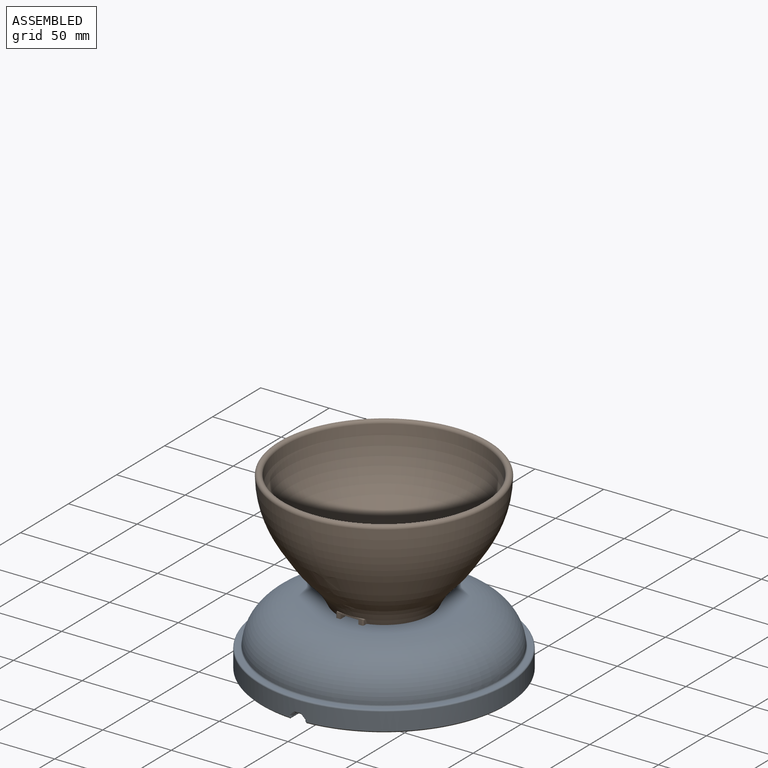
[diagram: assembled view]
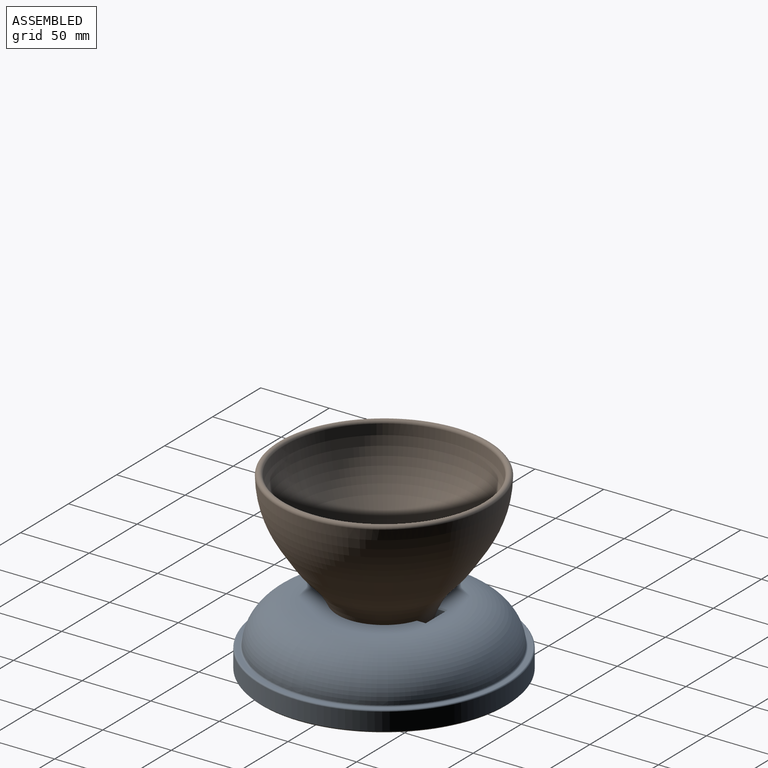
[diagram: assembled view, second angle]
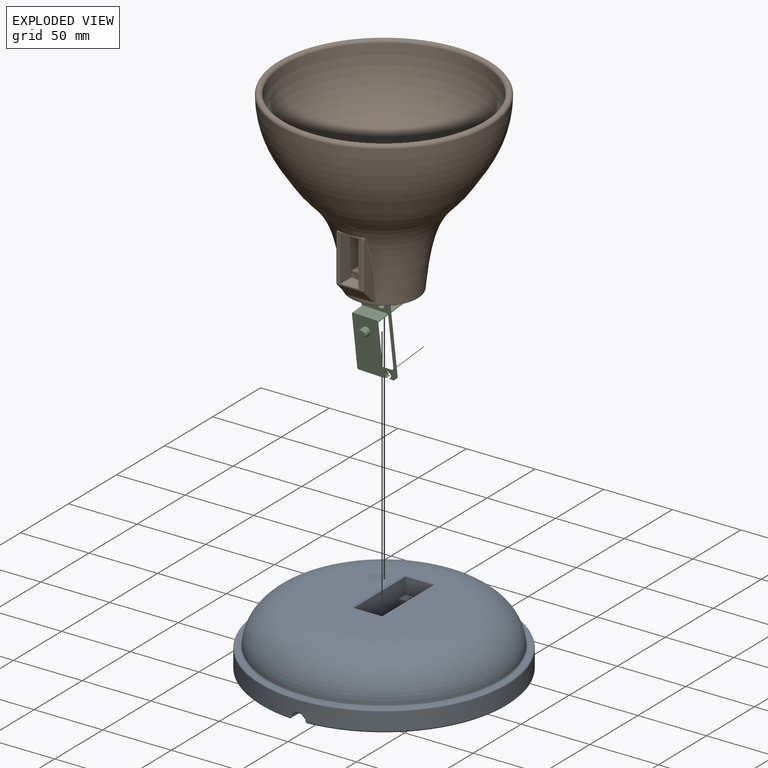
[diagram: exploded view]
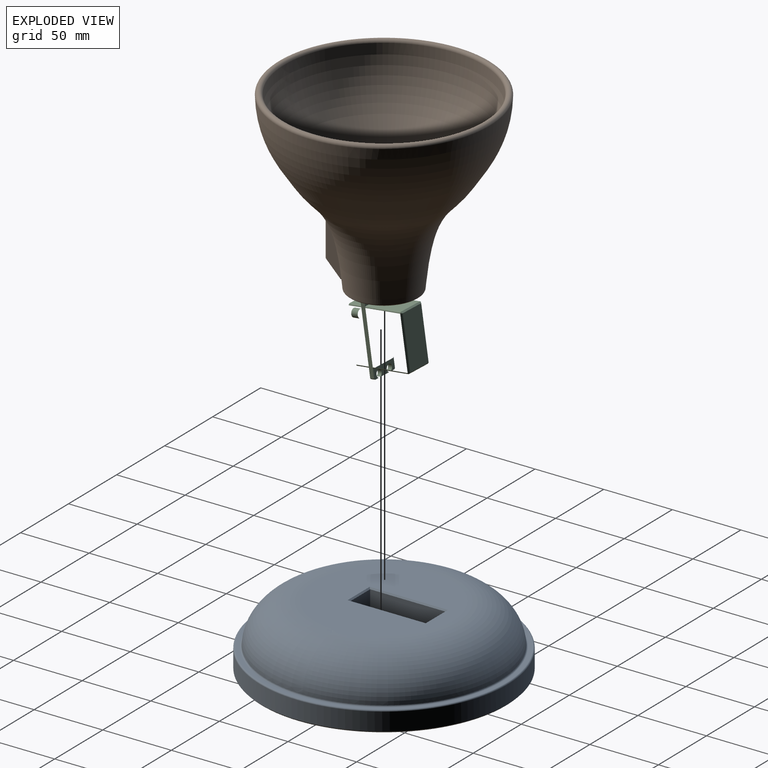
[diagram: exploded view, second angle]
FCSTD DOCUMENT  (FreeCAD 1.0R39109 (Git))
Label: Pixar Lamp Robot
License: All rights reserved
LicenseURL: http://en.wikipedia.org/wiki/All_rights_reserved
objects: Sketcher::SketchObject×21, PartDesign::Pocket×12, PartDesign::Fillet×8, PartDesign::Pad×6, PartDesign::Chamfer×4, PartDesign::Body×4, App::Part×4, PartDesign::Revolution×2, PartDesign::PolarPattern×1, Assembly::JointGroup×1, PartDesign::SubShapeBinder×1, Assembly::AssemblyObject×1
note: 145 computed .brp shape members not serialized (recipe doc carries the construction recipe); baked Part::Feature solids carry a one-line shape summary decoded from their .brp

FEATURE [Sketcher::SketchObject] Sketch010
  ArcFitTolerance = 0
  FullyConstrained = false
  MakeInternals = false
  Placement = pos=(0,0,0) rot=(0,1,0;1.5708rad)
  sketch-geometry (33):
    g0: GeomPoint [constr] X=-127.837 Y=-77.1037 Z=0
    g1: BSplineCurve PolesCount=7 KnotsCount=5 Degree=3 IsPeriodic=0
    g2-g8: Circle [constr] x7 (B-spline internal-alignment scaffolding for g1; pole/knot coordinates omitted)
    g9-g13: GeomPoint [constr] x5 (B-spline internal-alignment scaffolding for g1; pole/knot coordinates omitted)
    g14: LineSegment [constr] StartX=-127.837 StartY=-77.1037 StartZ=0 EndX=-127.837 EndY=-72.4339 EndZ=0
    g15: BSplineCurve PolesCount=6 KnotsCount=4 Degree=3 IsPeriodic=0
    g16: ArcOfCircle CenterX=-127.837 CenterY=-74.7688 CenterZ=0 NormalX=0 NormalY=0 NormalZ=1 AngleXU=0 Radius=2.33488 StartAngle=1.5708 EndAngle=4.71239
    g17: LineSegment StartX=0 StartY=0 StartZ=0 EndX=0 EndY=-24.806 EndZ=0
    g18: LineSegment StartX=0 StartY=0 StartZ=0 EndX=-51.1058 EndY=0 EndZ=0
    g19: LineSegment StartX=-51.1058 StartY=0 StartZ=0 EndX=-51.1058 EndY=-33 EndZ=0
    g20: LineSegment StartX=-51.1058 StartY=-33 StartZ=0 EndX=-68.1058 EndY=-33 EndZ=0
    g21: LineSegment StartX=-68.1058 StartY=-33 StartZ=0 EndX=-68.1058 EndY=-35 EndZ=0
    g22: LineSegment StartX=-68.1058 StartY=-35 StartZ=0 EndX=-54.1739 EndY=-35 EndZ=0
    g23-g28: Circle [constr] x6 (B-spline internal-alignment scaffolding for g15; pole/knot coordinates omitted)
    g29-g32: GeomPoint [constr] x4 (B-spline internal-alignment scaffolding for g15; pole/knot coordinates omitted)
  constraints (53):
    c: Block(g1)
    c: InternalAlignment(g2,g1)
    c: Weight(g2) = 1
    c: InternalAlignment(g3,g1)
    c: Equal(g3,g2)
    c: InternalAlignment(g4,g1)
    c: Equal(g4,g2)
    c: InternalAlignment(g5,g1)
    c: Equal(g5,g2)
    c: InternalAlignment(g6,g1)
    c: Equal(g6,g2)
    c: InternalAlignment(g7,g1)
    c: Equal(g7,g2)
    c: InternalAlignment(g8,g1)
    c: Equal(g8,g2)
    c: InternalAlignment(g9-g13 -> g1) x5
    c: Coincident(g14,g1)
    c: Vertical(g14)
    c: Block(g15)
    c: PointOnObject(g15,g16)
    c: PointOnObject(g16,g14)
    c: Coincident(g16,g14)
    c: Coincident(g16,g1)
    c: Coincident(g17,g-1)
    c: Coincident(g17,g1)
    c: Vertical(g17)
    c: Coincident(g18,g17)
    c: PointOnObject(g18,g-1)
    c: Coincident(g19,g18)
    c: Vertical(g19)
    c: Distance(g19) = 33  'Webcam Carveout Radius'
    c: Coincident(g20,g19)
    c: Horizontal(g20)
    c: Coincident(g21,g20)
    c: Vertical(g21)
    c: Coincident(g22,g21)
    c: Horizontal(g22)
    c: Distance(g21) = 2
    c: Distance(g20,g19) = 17
    c: Coincident(g15,g22)
    c: InternalAlignment(g23,g15)
    c: Weight(g23) = 1
    c: InternalAlignment(g24,g15)
    c: Equal(g24,g23)
    c: InternalAlignment(g25,g15)
    c: Equal(g25,g23)
    c: InternalAlignment(g26,g15)
    c: Equal(g26,g23)
    c: InternalAlignment(g27,g15)
    c: Equal(g27,g23)
    c: InternalAlignment(g28,g15)
    c: Equal(g28,g23)
    c: InternalAlignment(g29-g32 -> g15) x4
FEATURE [PartDesign::Revolution] Revolution001
  Angle = 360
  Angle2 = 60
  Axis = (0,0,-1)
  Base = (0,0,0)
  Placement = pos=(0,0,0) rot=(0,1,0;1.5708rad)
  Profile = -> Sketch010
  ReferenceAxis = -> Sketch010 [H_Axis]
  Reversed = true
  Suppressed = false
  Type = 0
FEATURE [Sketcher::SketchObject] Sketch011  label="Screw Posts"
  ArcFitTolerance = 0
  AttachmentOffset = pos=(0,0,0) rot=(0,0,1;1.5708rad)
  AttachmentSupport = -> [Revolution001]
  FullyConstrained = true
  MakeInternals = false
  MapMode = 5
  Placement = pos=(5.6e-15,0,51.1058) rot=(0,0,1;0rad)
  sketch-geometry (7):
    g0: Circle [constr] CenterX=0 CenterY=0 CenterZ=0 NormalX=0 NormalY=0 NormalZ=1 AngleXU=0 Radius=21
    g1: GeomPoint [constr] X=-21 Y=0 Z=0
    g2: GeomPoint [constr] X=0 Y=21 Z=0
    g3: GeomPoint [constr] X=21 Y=0 Z=0
    g4: Circle CenterX=0 CenterY=21 CenterZ=0 NormalX=0 NormalY=0 NormalZ=1 AngleXU=0 Radius=5
    g5: Circle CenterX=21 CenterY=0 CenterZ=0 NormalX=0 NormalY=0 NormalZ=1 AngleXU=0 Radius=5
    g6: Circle CenterX=-21 CenterY=0 CenterZ=0 NormalX=0 NormalY=0 NormalZ=1 AngleXU=0 Radius=5
  constraints (14):
    c: Coincident(g0,g-1)
    c: Diameter(g0) = 42
    c: PointOnObject(g1,g0)
    c: PointOnObject(g1,g-1)
    c: PointOnObject(g2,g0)
    c: PointOnObject(g2,g-2)
    c: PointOnObject(g3,g0)
    c: PointOnObject(g3,g-1)
    c: Coincident(g4,g2)
    c: Coincident(g5,g3)
    c: Coincident(g6,g1)
    c: Diameter(g6) = 10
    c: Equal(g6,g4)
    c: Equal(g4,g5)
FEATURE [PartDesign::Pad] Pad003  label="PCB Mounting Posts"
  BaseFeature = -> Revolution001
  Direction = (0,0,1)
  Length = 5
  Length2 = 10
  Placement = pos=(0,0,0) rot=(0,1,0;1.5708rad)
  Profile = -> Sketch011
  ReferenceAxis = -> Sketch011 [N_Axis]
  Suppressed = false
  Type = 0
FEATURE [Sketcher::SketchObject] Sketch012  label="Holes for PCB Posts"
  ArcFitTolerance = 0
  AttachmentSupport = -> [Pad003]
  ExternalGeometry = -> [Pad003]
  FullyConstrained = true
  MakeInternals = false
  MapMode = 5
  Placement = pos=(0,0,56.1058) rot=(0,0,-1;1.5708rad)
  sketch-geometry (3):
    g0: Circle CenterX=0 CenterY=-21 CenterZ=0 NormalX=0 NormalY=0 NormalZ=1 AngleXU=0 Radius=0.875
    g1: Circle CenterX=0 CenterY=21 CenterZ=0 NormalX=0 NormalY=0 NormalZ=1 AngleXU=0 Radius=0.875
    g2: Circle CenterX=-21 CenterY=1.78e-14 CenterZ=0 NormalX=0 NormalY=0 NormalZ=1 AngleXU=0 Radius=0.875
  constraints (6):
    c: Coincident(g0,g-3)
    c: Coincident(g1,g-4)
    c: Coincident(g2,g-5)
    c: Equal(g0,g1)
    c: Equal(g1,g2)
    c: Diameter(g2) = 1.75
FEATURE [PartDesign::Pocket] Pocket005
  BaseFeature = -> Pad003
  Direction = (0,0,-1)
  Length = 7
  Length2 = 5
  Placement = pos=(0,0,0) rot=(0,1,0;1.5708rad)
  Profile = -> Sketch012
  ReferenceAxis = -> Sketch012 [N_Axis]
  Suppressed = false
  Type = 0
FEATURE [PartDesign::Chamfer] Chamfer002
  Angle = 45
  Base = -> Pocket005 [Edge10]
  BaseFeature = -> Pocket005
  ChamferType = 0
  FlipDirection = false
  Placement = pos=(0,0,0) rot=(0,1,0;1.5708rad)
  Size = 1
  Size2 = 1
  SupportTransform = false
  Suppressed = false
  UseAllEdges = false
FEATURE [PartDesign::Fillet] Fillet004
  Base = -> Chamfer002 [Edge11,Edge17,Edge12,Edge19,Edge13,Edge21,Edge8]
  BaseFeature = -> Chamfer002
  Placement = pos=(0,0,0) rot=(0,1,0;1.5708rad)
  Radius = 1
  SupportTransform = false
  Suppressed = false
  UseAllEdges = false
FEATURE [PartDesign::Fillet] Fillet005
  Base = -> Fillet004 [Edge18]
  BaseFeature = -> Fillet004
  Placement = pos=(0,0,0) rot=(0,1,0;1.5708rad)
  Radius = 1
  SupportTransform = false
  Suppressed = false
  UseAllEdges = false
FEATURE [Sketcher::SketchObject] Sketch013
  ArcFitTolerance = 0
  AttachmentSupport = -> [YZ_Plane005]
  ExternalGeometry = -> [Sketch010]
  FullyConstrained = true
  MakeInternals = false
  MapMode = 5
  Placement = pos=(0,0,0) rot=(0.57735,0.57735,0.57735;2.0944rad)
  sketch-geometry (5):
    g0: LineSegment StartX=-25.1001 StartY=3.20607 StartZ=0 EndX=-5.99989 EndY=3.20607 EndZ=0
    g1: LineSegment StartX=-5.99989 StartY=3.20607 StartZ=0 EndX=-5.99989 EndY=49.1058 EndZ=0
    g2: LineSegment StartX=-5.99989 StartY=49.1058 StartZ=0 EndX=-35.9999 EndY=49.1058 EndZ=0
    g3: LineSegment StartX=-35.9999 StartY=49.1058 StartZ=0 EndX=-35.9999 EndY=14.1058 EndZ=0
    g4: LineSegment StartX=-35.9999 StartY=14.1058 StartZ=0 EndX=-25.1001 EndY=3.20607 EndZ=0
  constraints (16):
    c: Coincident(g0,g1)
    c: Coincident(g1,g2)
    c: Coincident(g2,g3)
    c: Horizontal(g0)
    c: Horizontal(g2)
    c: Vertical(g1)
    c: Vertical(g3)
    c: Angle(g0,g4) = 2.35619
    c: Coincident(g3,g4)
    c: Coincident(g0,g4)
    c: Distance(g2) = 30
    c: Distance(g3) = 35
    c: PointOnObject(g2,g-3)
    c: PointOnObject(g0,g-3)
    c: DistanceY(g1,g-5) = 2
    c: DistanceX(g0,g-1) = 5.99989
FEATURE [PartDesign::Pad] Pad004  label="Servo mounting point"
  BaseFeature = -> Fillet005
  Direction = (1,0,0)
  Length = 20
  Length2 = 10
  Midplane = true
  Placement = pos=(0,0,0) rot=(0,1,0;1.5708rad)
  Profile = -> Sketch013
  ReferenceAxis = -> Sketch013 [N_Axis]
  Suppressed = false
  Type = 0
FEATURE [Sketcher::SketchObject] Sketch014  label="Servo mounting carveout"
  ArcFitTolerance = 0
  AttachmentSupport = -> [Pad004]
  ExternalGeometry = -> [Pad004]
  FullyConstrained = true
  MakeInternals = false
  MapMode = 5
  Placement = pos=(0,-35.9999,0) rot=(0.57735,0.57735,-0.57735;2.0944rad)
  sketch-geometry (8):
    g0: LineSegment [constr] StartX=-49.1058 StartY=-10 StartZ=0 EndX=-14.1058 EndY=10 EndZ=0
    g1: LineSegment [constr] StartX=-14.1058 StartY=-10 StartZ=0 EndX=-49.1058 EndY=10 EndZ=0
    g2: GeomPoint [constr] X=-31.6058 Y=-6.2e-15 Z=0
    g3: LineSegment StartX=-15.1058 StartY=-6.5 StartZ=0 EndX=-15.1058 EndY=6.5 EndZ=0
    g4: LineSegment StartX=-15.1058 StartY=6.5 StartZ=0 EndX=-48.1058 EndY=6.5 EndZ=0
    g5: LineSegment StartX=-48.1058 StartY=6.5 StartZ=0 EndX=-48.1058 EndY=-6.5 EndZ=0
    g6: LineSegment StartX=-48.1058 StartY=-6.5 StartZ=0 EndX=-15.1058 EndY=-6.5 EndZ=0
    g7: GeomPoint [constr] X=-31.6058 Y=-6.2e-15 Z=0
  constraints (18):
    c: Coincident(g0,g-4)
    c: Coincident(g0,g-7)
    c: Coincident(g1,g-7)
    c: Coincident(g1,g-6)
    c: PointOnObject(g2,g0)
    c: PointOnObject(g2,g1)
    c: Coincident(g3,g4)
    c: Coincident(g4,g5)
    c: Coincident(g5,g6)
    c: Coincident(g6,g3)
    c: Horizontal(g4)
    c: Horizontal(g6)
    c: Vertical(g3)
    c: Vertical(g5)
    c: Symmetric(g4,g3,g7)
    c: Coincident(g7,g2)
    c: Distance(g4) = 33
    c: Distance(g5) = 13
FEATURE [PartDesign::Pocket] Pocket006
  BaseFeature = -> Pad004
  Direction = (0,1,0)
  Length = 11
  Length2 = 5
  Placement = pos=(0,0,0) rot=(0,1,0;1.5708rad)
  Profile = -> Sketch014
  ReferenceAxis = -> Sketch014 [N_Axis]
  Suppressed = false
  Type = 0
FEATURE [Sketcher::SketchObject] Sketch015  label="Servo main body and cord allowment"
  ArcFitTolerance = 0
  AttachmentSupport = -> [Pocket006]
  ExternalGeometry = -> [Pocket006]
  FullyConstrained = true
  MakeInternals = false
  MapMode = 5
  Placement = pos=(0,-24.9999,0) rot=(0.57735,0.57735,-0.57735;2.0944rad)
  sketch-geometry (8):
    g0: LineSegment [constr] StartX=-48.1058 StartY=-6.5 StartZ=0 EndX=-15.1058 EndY=6.5 EndZ=0
    g1: LineSegment [constr] StartX=-15.1058 StartY=-6.5 StartZ=0 EndX=-48.1058 EndY=6.5 EndZ=0
    g2: GeomPoint [constr] X=-31.6058 Y=1e-15 Z=0
    g3: LineSegment StartX=-19.6058 StartY=-6.5 StartZ=0 EndX=-19.6058 EndY=6.5 EndZ=0
    g4: LineSegment StartX=-19.6058 StartY=6.5 StartZ=0 EndX=-43.6058 EndY=6.5 EndZ=0
    g5: LineSegment StartX=-43.6058 StartY=6.5 StartZ=0 EndX=-43.6058 EndY=-6.5 EndZ=0
    g6: LineSegment StartX=-43.6058 StartY=-6.5 StartZ=0 EndX=-19.6058 EndY=-6.5 EndZ=0
    g7: GeomPoint [constr] X=-31.6058 Y=1e-15 Z=0
  constraints (18):
    c: Coincident(g0,g-4)
    c: Coincident(g0,g-6)
    c: Coincident(g1,g-6)
    c: Coincident(g1,g-5)
    c: PointOnObject(g2,g0)
    c: PointOnObject(g2,g1)
    c: Coincident(g3,g4)
    c: Coincident(g4,g5)
    c: Coincident(g5,g6)
    c: Coincident(g6,g3)
    c: Horizontal(g4)
    c: Horizontal(g6)
    c: Vertical(g3)
    c: Vertical(g5)
    c: Symmetric(g4,g3,g7)
    c: Coincident(g7,g2)
    c: PointOnObject(g5,g-3)
    c: Distance(g4) = 24
FEATURE [PartDesign::Pocket] Pocket007
  BaseFeature = -> Pocket006
  Direction = (0,1,0)
  Length = 16.5
  Length2 = 5
  Placement = pos=(0,0,0) rot=(0,1,0;1.5708rad)
  Profile = -> Sketch015
  ReferenceAxis = -> Sketch015 [N_Axis]
  Suppressed = false
  Type = 0
FEATURE [Sketcher::SketchObject] Sketch016
  ArcFitTolerance = 0
  AttachmentSupport = -> [Pocket007]
  FullyConstrained = true
  MakeInternals = false
  MapMode = 5
  Placement = pos=(5.6e-15,0,51.1058) rot=(0,0,-1;1.5708rad)
  sketch-geometry (1):
    g0: Circle CenterX=0 CenterY=0 CenterZ=0 NormalX=0 NormalY=0 NormalZ=1 AngleXU=0 Radius=8
  constraints (2):
    c: Coincident(g0,g-1)
    c: Radius(g0) = 8
FEATURE [PartDesign::Pocket] Pocket008
  BaseFeature = -> Pocket007
  Direction = (-2e-15,0,-1)
  Length = 0
  Length2 = 5
  Placement = pos=(0,0,0) rot=(0,1,0;1.5708rad)
  Profile = -> Sketch016
  ReferenceAxis = -> Sketch016 [N_Axis]
  Suppressed = false
  Type = 3
  UpToFace = -> Pocket007 [Face13]
FEATURE [PartDesign::Fillet] Fillet006
  Base = -> Pocket008 [Face13]
  BaseFeature = -> Pocket008
  Placement = pos=(0,0,0) rot=(0,1,0;1.5708rad)
  Radius = 1
  SupportTransform = false
  Suppressed = false
  UseAllEdges = false
FEATURE [PartDesign::Fillet] Fillet007
  Base = -> Fillet006 [Face4]
  BaseFeature = -> Fillet006
  Placement = pos=(0,0,0) rot=(0,1,0;1.5708rad)
  Radius = 1
  SupportTransform = false
  Suppressed = false
  UseAllEdges = false
FEATURE [PartDesign::Fillet] Fillet008
  Base = -> Fillet007 [Face9]
  BaseFeature = -> Fillet007
  Placement = pos=(0,0,0) rot=(0,1,0;1.5708rad)
  Radius = 1
  SupportTransform = false
  Suppressed = false
  UseAllEdges = false
FEATURE [PartDesign::Fillet] Fillet009
  Base = -> Fillet008 [Edge43]
  BaseFeature = -> Fillet008
  Placement = pos=(0,0,0) rot=(0,1,0;1.5708rad)
  Radius = 1
  SupportTransform = false
  Suppressed = false
  UseAllEdges = false
FEATURE [Sketcher::SketchObject] Sketch017  label="Servo cord feed through"
  ArcFitTolerance = 0
  AttachmentSupport = -> [Fillet009]
  ExternalGeometry = -> [Fillet009]
  FullyConstrained = true
  MakeInternals = false
  MapMode = 5
  Placement = pos=(4.8e-15,0,43.6058) rot=(0.707107,0.707107,0;3.14159rad)
  sketch-geometry (5):
    g0: LineSegment StartX=-20.4999 StartY=-6.5 StartZ=0 EndX=-20.4999 EndY=6.5 EndZ=0
    g1: LineSegment StartX=-20.4999 StartY=6.5 StartZ=0 EndX=-8.49989 EndY=6.5 EndZ=0
    g2: LineSegment StartX=-8.49989 StartY=6.5 StartZ=0 EndX=-8.49989 EndY=-6.5 EndZ=0
    g3: LineSegment StartX=-8.49989 StartY=-6.5 StartZ=0 EndX=-20.4999 EndY=-6.5 EndZ=0
    g4: GeomPoint [constr] X=-14.4999 Y=0 Z=0
  constraints (13):
    c: Coincident(g0,g1)
    c: Coincident(g1,g2)
    c: Coincident(g2,g3)
    c: Coincident(g3,g0)
    c: Horizontal(g1)
    c: Horizontal(g3)
    c: Vertical(g0)
    c: Vertical(g2)
    c: Symmetric(g1,g0,g4)
    c: PointOnObject(g4,g-1)
    c: PointOnObject(g1,g-4)
    c: PointOnObject(g0,g-6)
    c: Distance(g1) = 12
FEATURE [PartDesign::Pocket] Pocket009
  BaseFeature = -> Fillet009
  Direction = (0,0,1)
  Length = 0
  Length2 = 5
  Placement = pos=(0,0,0) rot=(0,1,0;1.5708rad)
  Profile = -> Sketch017
  ReferenceAxis = -> Sketch017 [N_Axis]
  Suppressed = false
  Type = 3
  UpToFace = -> Fillet009 [Face46]
FEATURE [Sketcher::SketchObject] Sketch018  label="Servo screw mounting holes"
  ArcFitTolerance = 0
  AttachmentSupport = -> [Pocket009]
  ExternalGeometry = -> [Pocket009]
  FullyConstrained = true
  MakeInternals = false
  MapMode = 5
  Placement = pos=(0,-24.9999,0) rot=(0.57735,0.57735,-0.57735;2.0944rad)
  sketch-geometry (11):
    g0: ArcOfCircle CenterX=-45.6058 CenterY=0 CenterZ=0 NormalX=0 NormalY=0 NormalZ=1 AngleXU=0 Radius=0.875 StartAngle=3.92699 EndAngle=8.63938
    g1: ArcOfCircle CenterX=-17.6058 CenterY=0 CenterZ=0 NormalX=0 NormalY=0 NormalZ=1 AngleXU=0 Radius=0.875 StartAngle=3.92699 EndAngle=8.63938
    g2: LineSegment [constr] StartX=-48.1058 StartY=6.5 StartZ=0 EndX=-15.1058 EndY=-6.5 EndZ=0
    g3: LineSegment [constr] StartX=-48.1058 StartY=-6.5 StartZ=0 EndX=-15.1058 EndY=6.5 EndZ=0
    g4: GeomPoint [constr] X=-31.6058 Y=-7.2e-15 Z=0
    g5: LineSegment [constr] StartX=-45.6058 StartY=0 StartZ=0 EndX=-31.6058 EndY=-7.2e-15 EndZ=0
    g6: LineSegment [constr] StartX=-31.6058 StartY=-7.2e-15 StartZ=0 EndX=-17.6058 EndY=0 EndZ=0
    g7: LineSegment StartX=-46.2245 StartY=-0.618718 StartZ=0 EndX=-46.8433 EndY=0 EndZ=0
    g8: LineSegment StartX=-46.2245 StartY=0.618718 StartZ=0 EndX=-46.8433 EndY=0 EndZ=0
    g9: LineSegment StartX=-18.2245 StartY=-0.618718 StartZ=0 EndX=-18.8433 EndY=-7e-16 EndZ=0
    g10: LineSegment StartX=-18.8433 StartY=-7e-16 StartZ=0 EndX=-18.2245 EndY=0.618718 EndZ=0
  constraints (26):
    c: PointOnObject(g0,g-1)
    c: PointOnObject(g1,g-1)
    c: Distance(g0,g1) = 28
    c: Coincident(g2,g-4)
    c: Coincident(g2,g-6)
    c: Coincident(g3,g-5)
    c: Coincident(g3,g-6)
    c: PointOnObject(g4,g3)
    c: PointOnObject(g4,g2)
    c: Coincident(g5,g0)
    c: Coincident(g6,g4)
    c: Equal(g5,g6)
    c: Coincident(g5,g4)
    c: Coincident(g6,g1)
    c: Equal(g0,g1)
    c: Diameter(g0) = 1.75
    c: PointOnObject(g7,g-1)
    c: Coincident(g8,g7)
    c: Perpendicular(g8,g7)
    c: Tangent(g0,g8) = -1.5708
    c: Tangent(g0,g7) = 1.5708
    c: PointOnObject(g9,g6)
    c: Coincident(g10,g9)
    c: Perpendicular(g10,g9)
    c: Tangent(g1,g9) = 1.5708
    c: Tangent(g1,g10) = 1.5708
FEATURE [PartDesign::Pocket] Pocket010
  BaseFeature = -> Pocket009
  Direction = (0,1,0)
  Length = 10
  Length2 = 5
  Placement = pos=(0,0,0) rot=(0,1,0;1.5708rad)
  Profile = -> Sketch018
  ReferenceAxis = -> Sketch018 [N_Axis]
  Suppressed = false
  Type = 0
FEATURE [Sketcher::SketchObject] Sketch019
  ArcFitTolerance = 0
  AttachmentOffset = pos=(0,0,-30) rot=(0,0,1;0rad)
  AttachmentSupport = -> [YZ_Plane005]
  ExternalGeometry = -> [Pocket010]
  FullyConstrained = true
  MakeInternals = false
  MapMode = 5
  Placement = pos=(-30,0,0) rot=(0.57735,0.57735,0.57735;2.0944rad)
  sketch-geometry (1):
    g0: Circle CenterX=0 CenterY=68.1058 CenterZ=0 NormalX=0 NormalY=0 NormalZ=1 AngleXU=0 Radius=10
  constraints (3):
    c: Diameter(g0) = 20
    c: PointOnObject(g0,g-2)
    c: PointOnObject(g0,g-3)
FEATURE [PartDesign::Pocket] Pocket011
  BaseFeature = -> Pocket010
  Direction = (-1,0,0)
  Length = 5
  Length2 = 5
  Placement = pos=(0,0,0) rot=(0,1,0;1.5708rad)
  Profile = -> Sketch019
  ReferenceAxis = -> Sketch019 [N_Axis]
  Suppressed = false
  Type = 0
FEATURE [PartDesign::PolarPattern] PolarPattern001
  Angle = 360
  Axis = -> Z_Axis005
  BaseFeature = -> Pocket011
  Mode = 0
  Occurrences = 2
  Offset = 120
  Originals = -> [Pocket011]
  Placement = pos=(0,0,0) rot=(0,1,0;1.5708rad)
  Suppressed = false
  TransformMode = 0
FEATURE [PartDesign::Body] Body003
  AllowCompound = false
  Group = -> [Sketch010,Revolution001,Sketch011,Pad003,Sketch012,Pocket005,Chamfer002,Fillet004,Fillet005,Sketch013,Pad004,Sketch014,Pocket006,Sketch015,Pocket007,Sketch016,Pocket008,Fillet006,Fillet007,Fillet008,Fillet009,Sketch017,Pocket009,Sketch018,Pocket010,Sketch019,Pocket011,PolarPattern001]
  Origin = -> Origin005
  Tip = -> PolarPattern001
FEATURE [App::Part] Part001  label="Lampshade001"
  Group = -> [Body003]
  Origin = -> Origin004
FEATURE [Assembly::JointGroup] Joints
FEATURE [Sketcher::SketchObject] Sketch
  ArcFitTolerance = 1e-06
  AttachmentSupport = -> [XZ_Plane007]
  FullyConstrained = true
  MakeInternals = false
  MapMode = 5
  Placement = pos=(0,0,0) rot=(1,0,0;1.5708rad)
  sketch-geometry (10):
    g0: LineSegment StartX=0 StartY=0 StartZ=0 EndX=0 EndY=45 EndZ=0
    g1: LineSegment StartX=0 StartY=0 StartZ=0 EndX=90 EndY=0 EndZ=0
    g2: LineSegment StartX=90 StartY=0 StartZ=0 EndX=90 EndY=15 EndZ=0
    g3: ArcOfEllipse CenterX=50 CenterY=15 CenterZ=0 NormalX=0 NormalY=0 NormalZ=1 MajorRadius=35 MinorRadius=30 AngleXU=0 StartAngle=0 EndAngle=1.5708
    g4: LineSegment [constr] StartX=85 StartY=15 StartZ=0 EndX=15 EndY=15 EndZ=0
    g5: LineSegment [constr] StartX=50 StartY=45 StartZ=0 EndX=50 EndY=-15 EndZ=0
    g6: GeomPoint [constr] X=68.0278 Y=15 Z=0
    g7: GeomPoint [constr] X=31.9722 Y=15 Z=0
    g8: LineSegment StartX=90 StartY=15 StartZ=0 EndX=85 EndY=15 EndZ=0
    g9: LineSegment StartX=0 StartY=45 StartZ=0 EndX=50 EndY=45 EndZ=0
  constraints (21):
    c: Coincident(g0,g-1)
    c: PointOnObject(g0,g-2)
    c: Coincident(g1,g0)
    c: PointOnObject(g1,g-1)
    c: Coincident(g2,g1)
    c: Vertical(g2)
    c: InternalAlignment(g4-g7 -> g3) x4
    c: Coincident(g8,g2)
    c: Horizontal(g8)
    c: Coincident(g3,g8)
    c: Horizontal(g4)
    c: Coincident(g9,g0)
    c: Horizontal(g9)
    c: Coincident(g3,g9)
    c: Coincident(g5,g3)
    c: Distance(g1,g1) = 90
    c: DistanceY(g0,g0) = 45
    c: DistanceX(g9,g9) = 50
    c: Coincident(g3,g4)
    c: Distance(g8,g8) = 5
    c: Distance(g2,g2) = 15
FEATURE [PartDesign::Revolution] Revolution
  Angle = 360
  Angle2 = 60
  Axis = (0,2e-16,1)
  Base = (0,0,0)
  Placement = pos=(0,0,0) rot=(1,0,0;1.5708rad)
  Profile = -> Sketch
  ReferenceAxis = -> Sketch [V_Axis]
  Reversed = true
  Suppressed = false
  Type = 0
FEATURE [PartDesign::Fillet] Fillet
  Base = -> Revolution [Face1]
  BaseFeature = -> Revolution
  Placement = pos=(0,0,0) rot=(1,0,0;1.5708rad)
  Radius = 1
  SupportTransform = false
  Suppressed = false
  UseAllEdges = false
FEATURE [Sketcher::SketchObject] Sketch020  label="base servo body cutout"
  ArcFitTolerance = 1e-06
  FullyConstrained = false
  MakeInternals = false
  MapMode = 5
  Placement = pos=(0,1e-14,45) rot=(0,0,1;3.14159rad)
  sketch-geometry (9):
    g0: LineSegment StartX=-10.5 StartY=-37.5 StartZ=0 EndX=10.5 EndY=-37.5 EndZ=0
    g1: LineSegment StartX=10.5 StartY=-37.5 StartZ=0 EndX=10.5 EndY=17.5 EndZ=0
    g2: LineSegment StartX=-10.5 StartY=17.5 StartZ=0 EndX=-10.5 EndY=-37.5 EndZ=0
    g3: LineSegment StartX=10.5 StartY=17.5 StartZ=0 EndX=0 EndY=17.5 EndZ=0
    g4: LineSegment StartX=0 StartY=17.5 StartZ=0 EndX=-10.5 EndY=17.5 EndZ=0
    g5: LineSegment [constr] StartX=-10.5 StartY=10 StartZ=0 EndX=10.5 EndY=10 EndZ=0
    g6: LineSegment [constr] StartX=-10.5 StartY=-30 StartZ=0 EndX=10.5 EndY=-30 EndZ=0
    g7: LineSegment [constr] StartX=-5.40577 StartY=-30 StartZ=0 EndX=-5.40577 EndY=-37.5 EndZ=0
    g8: LineSegment [constr] StartX=-2.00214 StartY=10 StartZ=0 EndX=-2.00214 EndY=17.5 EndZ=0
  constraints (29):
    c: Coincident(g0,g1)
    c: Coincident(g1,g3)
    c: Coincident(g4,g2)
    c: Coincident(g2,g0)
    c: Horizontal(g0)
    c: Vertical(g1)
    c: Vertical(g2)
    c: DistanceY(g1,g1) = 55
    c: Distance(g3,g4) = 21
    c: Coincident(g3,g4)
    c: Horizontal(g3)
    c: Horizontal(g4)
    c: Equal(g4,g3)
    c: PointOnObject(g3,g-2)
    c: PointOnObject(g5,g2)
    c: PointOnObject(g5,g1)
    c: Horizontal(g5)
    c: PointOnObject(g6,g2)
    c: PointOnObject(g6,g1)
    c: Horizontal(g6)
    c: PointOnObject(g7,g6)
    c: PointOnObject(g7,g0)
    c: PointOnObject(g8,g5)
    c: PointOnObject(g8,g3)
    c: Vertical(g8)
    c: Equal(g8,g7)
    c: Perpendicular(g0,g7)
    c: Distance(g-1,g5) = 10
    c: DistanceY(g6,g5) = 40
FEATURE [Sketcher::SketchObject] Sketch021
  ArcFitTolerance = 1e-06
  AttachmentSupport = -> [XY_Plane009]
  FullyConstrained = true
  MakeInternals = false
  MapMode = 5
  sketch-geometry (6):
    g0: Circle CenterX=0 CenterY=0 CenterZ=0 NormalX=0 NormalY=0 NormalZ=1 AngleXU=0 Radius=3
    g1: LineSegment StartX=-10 StartY=-30 StartZ=0 EndX=10 EndY=-30 EndZ=0
    g2: LineSegment StartX=10 StartY=-30 StartZ=0 EndX=10 EndY=10 EndZ=0
    g3: LineSegment StartX=-10 StartY=10 StartZ=0 EndX=-10 EndY=-30 EndZ=0
    g4: LineSegment StartX=10 StartY=10 StartZ=0 EndX=0 EndY=10 EndZ=0
    g5: LineSegment StartX=0 StartY=10 StartZ=0 EndX=-10 EndY=10 EndZ=0
  constraints (17):
    c: Coincident(g0,g-1)
    c: Coincident(g1,g2)
    c: Coincident(g2,g4)
    c: Coincident(g5,g3)
    c: Coincident(g3,g1)
    c: Horizontal(g1)
    c: Vertical(g2)
    c: Vertical(g3)
    c: Coincident(g4,g5)
    c: Horizontal(g4)
    c: Horizontal(g5)
    c: Equal(g5,g4)
    c: PointOnObject(g4,g-2)
    c: DistanceY(g0,g4) = 10
    c: DistanceY(g2,g2) = 40
    c: Distance(g1,g1) = 20
    c: Diameter(g0) = 6
FEATURE [PartDesign::Pad] Pad
  Direction = (0,0,1)
  Length = 27.8
  Length2 = 10
  Profile = -> Sketch021 [Edge6,Edge2,Edge3,Edge4,Edge5]
  ReferenceAxis = -> Sketch021 [N_Axis]
  Reversed = true
  Suppressed = false
  Type = 0
FEATURE [Sketcher::SketchObject] Sketch022
  ArcFitTolerance = 1e-06
  AttachmentSupport = -> [XY_Plane009]
  ExternalGeometry = -> [Pad]
  FullyConstrained = false
  MakeInternals = false
  MapMode = 5
  sketch-geometry (41):
    g0: LineSegment StartX=-10 StartY=-37.25 StartZ=0 EndX=-6.12702 EndY=-37.25 EndZ=0
    g1: LineSegment StartX=10 StartY=17.25 StartZ=0 EndX=6.12702 EndY=17.25 EndZ=0
    g2: LineSegment StartX=-10 StartY=17.25 StartZ=0 EndX=-10 EndY=10 EndZ=0
    g3: LineSegment StartX=-10 StartY=10 StartZ=0 EndX=-10 EndY=-30 EndZ=0
    g4: LineSegment StartX=-10 StartY=-30 StartZ=0 EndX=-10 EndY=-37.25 EndZ=0
    g5: ArcOfCircle CenterX=-5 CenterY=14.75 CenterZ=0 NormalX=0 NormalY=0 NormalZ=1 AngleXU=0 Radius=2.5 StartAngle=2.01419 EndAngle=7.41059
    g6: ArcOfCircle CenterX=5 CenterY=14.75 CenterZ=0 NormalX=0 NormalY=0 NormalZ=1 AngleXU=0 Radius=2.5 StartAngle=2.01419 EndAngle=7.41059
    g7: LineSegment [constr] StartX=-5 StartY=14.75 StartZ=0 EndX=-2.49e-14 EndY=14.75 EndZ=0
    g8: LineSegment [constr] StartX=-2.49e-14 StartY=14.75 StartZ=0 EndX=5 EndY=14.75 EndZ=0
    g9: LineSegment [constr] StartX=-5 StartY=-34.75 StartZ=0 EndX=0 EndY=-34.75 EndZ=0
    g10: LineSegment [constr] StartX=0 StartY=-34.75 StartZ=0 EndX=5 EndY=-34.75 EndZ=0
    g11: ArcOfCircle CenterX=-6.12702 CenterY=17.123 CenterZ=0 NormalX=0 NormalY=0 NormalZ=1 AngleXU=0 Radius=0.127017 StartAngle=5.15579 EndAngle=7.85398
    g12: GeomPoint [constr] X=-6 Y=17.123 Z=0
    g13: LineSegment [constr] StartX=-6.12702 StartY=17.123 StartZ=0 EndX=-6 EndY=17.123 EndZ=0
    g14: ArcOfCircle CenterX=-3.87298 CenterY=17.123 CenterZ=0 NormalX=0 NormalY=0 NormalZ=1 AngleXU=0 Radius=0.127017 StartAngle=1.5708 EndAngle=4.26899
    g15: GeomPoint X=-4 Y=17.123 Z=0
    g16: LineSegment [constr] StartX=-4 StartY=17.123 StartZ=0 EndX=-3.87298 EndY=17.123 EndZ=0
    g17: LineSegment StartX=-6.12702 StartY=17.25 StartZ=0 EndX=-10 EndY=17.25 EndZ=0
    g18: ArcOfCircle CenterX=3.87298 CenterY=17.123 CenterZ=0 NormalX=0 NormalY=0 NormalZ=1 AngleXU=0 Radius=0.127017 StartAngle=5.15579 EndAngle=7.85398
    g19: ArcOfCircle CenterX=6.12702 CenterY=17.123 CenterZ=0 NormalX=0 NormalY=0 NormalZ=1 AngleXU=0 Radius=0.127017 StartAngle=1.5708 EndAngle=4.26899
    g20: LineSegment [constr] StartX=3.87298 StartY=17.123 StartZ=0 EndX=6.12702 EndY=17.123 EndZ=0
    g21: GeomPoint [constr] X=4 Y=17.123 Z=0
    g22: GeomPoint [constr] X=6 Y=17.123 Z=0
    g23: LineSegment [constr] StartX=4 StartY=17.123 StartZ=0 EndX=6 EndY=17.123 EndZ=0
    g24: LineSegment StartX=3.87298 StartY=17.25 StartZ=0 EndX=-3.87298 EndY=17.25 EndZ=0
    g25: LineSegment StartX=10 StartY=17.25 StartZ=0 EndX=10 EndY=-37.25 EndZ=0
    g26: ArcOfCircle CenterX=-6.12702 CenterY=-37.123 CenterZ=0 NormalX=0 NormalY=0 NormalZ=1 AngleXU=0 Radius=0.127017 StartAngle=4.71239 EndAngle=7.41059
    g27: ArcOfCircle CenterX=6.12702 CenterY=-37.123 CenterZ=0 NormalX=0 NormalY=0 NormalZ=1 AngleXU=0 Radius=0.127017 StartAngle=2.01419 EndAngle=4.71239
    g28: ArcOfCircle CenterX=-3.87298 CenterY=-37.123 CenterZ=0 NormalX=0 NormalY=0 NormalZ=1 AngleXU=0 Radius=0.127017 StartAngle=2.01419 EndAngle=4.71239
    g29: ArcOfCircle CenterX=3.87298 CenterY=-37.123 CenterZ=0 NormalX=0 NormalY=0 NormalZ=1 AngleXU=0 Radius=0.127017 StartAngle=4.71239 EndAngle=7.41059
    g30: LineSegment [constr] StartX=-6 StartY=-37.123 StartZ=0 EndX=-4 EndY=-37.123 EndZ=0
    g31: LineSegment [constr] StartX=4 StartY=-37.123 StartZ=0 EndX=6 EndY=-37.123 EndZ=0
    g32: GeomPoint [constr] X=-5.99129 Y=-37.0451 Z=0
    g33: ArcOfCircle CenterX=-5 CenterY=-34.75 CenterZ=0 NormalX=0 NormalY=0 NormalZ=1 AngleXU=0 Radius=2.5 StartAngle=5.15579 EndAngle=10.5522
    g34: LineSegment StartX=-3.87298 StartY=-37.25 StartZ=0 EndX=3.87298 EndY=-37.25 EndZ=0
    g35: ArcOfCircle CenterX=5 CenterY=-34.75 CenterZ=0 NormalX=0 NormalY=0 NormalZ=1 AngleXU=0 Radius=2.5 StartAngle=5.15579 EndAngle=10.5522
    g36: ArcOfCircle [constr] CenterX=-5 CenterY=-34.75 CenterZ=0 NormalX=0 NormalY=0 NormalZ=1 AngleXU=0 Radius=2.5 StartAngle=4.30467 EndAngle=5.15579
    g37: LineSegment [constr] StartX=-6.12702 StartY=-37.25 StartZ=0 EndX=-3.87298 EndY=-37.25 EndZ=0
    g38: LineSegment StartX=6.12702 StartY=-37.25 StartZ=0 EndX=10 EndY=-37.25 EndZ=0
    g39: ArcOfCircle [constr] CenterX=-5 CenterY=14.75 CenterZ=0 NormalX=0 NormalY=0 NormalZ=1 AngleXU=0 Radius=2.5 StartAngle=1.09186 EndAngle=2.01419
    g40: LineSegment [constr] StartX=-6.12702 StartY=17.25 StartZ=0 EndX=-3.87298 EndY=17.25 EndZ=0
  constraints (100):
    c: Coincident(g17,g2)
    c: Coincident(g4,g0)
    c: Horizontal(g0)
    c: Coincident(g2,g3)
    c: Coincident(g3,g4)
    c: Coincident(g2,g-4)
    c: Coincident(g3,g-7)
    c: Equal(g2,g4)
    c: Equal(g5,g6)
    c: DistanceX(g5,g6) = 10
    c: Coincident(g7,g5)
    c: Coincident(g8,g6)
    c: Coincident(g7,g8)
    c: Equal(g7,g8)
    c: Coincident(g9,g10)
    c: Equal(g9,g10)
    c: Equal(g10,g8)
    c: PointOnObject(g9,g-2)
    c: DistanceY(g38,g1) = 54.5
    c: Horizontal(g10)
    c: Vertical(g2)
    c: Vertical(g4)
    c: PointOnObject(g12,g11)
    c: Coincident(g13,g11)
    c: Coincident(g13,g12)
    c: Horizontal(g13)
    c: PointOnObject(g15,g14)
    c: Coincident(g16,g15)
    c: Coincident(g16,g14)
    c: Tangent(g13,g16)
    c: DistanceX(g12,g15) = 2
    c: Tangent(g11,g17) = -1.5708
    c: Tangent(g11,g5) = 1.5708
    c: Tangent(g14,g5) = 1.5708
    c: Equal(g18,g19)
    c: Coincident(g20,g18)
    c: Coincident(g20,g19)
    c: Horizontal(g20)
    c: PointOnObject(g21,g20)
    c: PointOnObject(g22,g20)
    c: PointOnObject(g21,g18)
    c: PointOnObject(g22,g19)
    c: Coincident(g23,g21)
    c: Coincident(g23,g22)
    c: Symmetric(g14,g18,g-2)
    c: Tangent(g19,g6) = 1.5708
    c: Tangent(g18,g24) = -1.5708
    c: Tangent(g6,g18) = 1.5708
    c: Tangent(g14,g24) = -1.5708
    c: Coincident(g25,g1)
    c: Coincident(g25,g38)
    c: Horizontal(g8)
    c: Equal(g26,g28)
    c: Equal(g29,g27)
    c: PointOnObject(g30,g28)
    c: Horizontal(g30)
    c: PointOnObject(g31,g29)
    c: PointOnObject(g31,g27)
    c: Perpendicular(g26,g30)
    c: Perpendicular(g29,g31)
    c: Horizontal(g31)
    c: Equal(g30,g31)
    c: DistanceX(g30,g30) = 2
    c: Coincident(g33,g26) = 1.5708
    c: Tangent(g0,g26) = -1.5708
    c: Tangent(g34,g28) = -1.5708
    c: Coincident(g35,g29) = 1.5708
    c: Coincident(g10,g35)
    c: Tangent(g0,g34)
    c: Coincident(g9,g33)
    c: Horizontal(g9)
    c: Equal(g33,g35)
    c: Tangent(g17,g24)
    c: Tangent(g25,g-6)
    c: Tangent(g26,g33) = 1.5708
    c: DistanceY(g9,g5) = 49.5
    c: Tangent(g28,g33) = 1.5708
    c: Coincident(g36,g32)
    c: Coincident(g36,g28)
    c: Coincident(g37,g0)
    c: Coincident(g37,g28)
    c: Tangent(g36,g37)
    c: Tangent(g29,g35) = 1.5708
    c: Tangent(g27,g35) = 1.5708
    c: Tangent(g34,g29) = -1.5708
    c: Tangent(g38,g27) = -1.5708
    c: Coincident(g36,g9)
    c: PointOnObject(g30,g26)
    c: Perpendicular(g27,g31)
    c: Perpendicular(g25,g38)
    c: Tangent(g19,g1) = -1.5708
    c: Horizontal(g7)
    c: Coincident(g39,g5)
    c: Coincident(g39,g5)
    c: Horizontal(g1)
    c: Tangent(g40,g11) = 1.5708
    c: Coincident(g40,g14)
    c: Horizontal(g40)
    c: Tangent(g39,g40)
    c: Equal(g5,g33)
FEATURE [PartDesign::Pad] Pad005
  BaseFeature = -> Pad
  Direction = (0,0,1)
  Length = 3.1
  Length2 = 10
  Profile = -> Sketch022
  ReferenceAxis = -> Sketch022 [N_Axis]
  Suppressed = false
  Type = 0
FEATURE [Sketcher::SketchObject] Sketch023
  ArcFitTolerance = 1e-06
  AttachmentSupport = -> [Pad005]
  ExternalGeometry = -> [Pad005]
  FullyConstrained = true
  MakeInternals = false
  MapMode = 5
  Placement = pos=(0,0,3.1) rot=(0,0,1;0rad)
  sketch-geometry (4):
    g0: LineSegment StartX=-10 StartY=-30 StartZ=0 EndX=10 EndY=-30 EndZ=0
    g1: LineSegment StartX=10 StartY=-30 StartZ=0 EndX=10 EndY=10 EndZ=0
    g2: LineSegment StartX=10 StartY=10 StartZ=0 EndX=-10 EndY=10 EndZ=0
    g3: LineSegment StartX=-10 StartY=10 StartZ=0 EndX=-10 EndY=-30 EndZ=0
  constraints (10):
    c: Coincident(g0,g1)
    c: Coincident(g1,g2)
    c: Coincident(g2,g3)
    c: Coincident(g3,g0)
    c: Horizontal(g0)
    c: Horizontal(g2)
    c: Vertical(g1)
    c: Vertical(g3)
    c: Coincident(g0,g-3)
    c: Coincident(g1,g-4)
FEATURE [PartDesign::Pad] Pad006
  BaseFeature = -> Pad005
  Direction = (0,0,1)
  Length = 9.6
  Length2 = 10
  Profile = -> Sketch023
  ReferenceAxis = -> Sketch023 [N_Axis]
  Suppressed = false
  Type = 0
FEATURE [Sketcher::SketchObject] Sketch024
  ArcFitTolerance = 1e-06
  AttachmentSupport = -> [Pad006]
  FullyConstrained = true
  MakeInternals = false
  MapMode = 5
  Placement = pos=(0,0,12.7) rot=(0,0,1;0rad)
  sketch-geometry (1):
    g0: Circle CenterX=0 CenterY=0 CenterZ=0 NormalX=0 NormalY=0 NormalZ=1 AngleXU=0 Radius=3
  constraints (2):
    c: Diameter(g0) = 6
    c: Coincident(g0,g-1)
FEATURE [PartDesign::Pad] Pad007
  BaseFeature = -> Pad006
  Direction = (0,0,1)
  Length = 5
  Length2 = 10
  Profile = -> Sketch024
  ReferenceAxis = -> Sketch024 [N_Axis]
  Suppressed = false
  Type = 0
FEATURE [PartDesign::Fillet] Fillet010
  Base = -> Pad007 [Edge1,Edge45,Edge41,Edge61,Edge89,Edge16,Edge2,Edge46,Edge43,Edge8,Edge91,Edge63]
  BaseFeature = -> Pad007
  Radius = 1
  SupportTransform = false
  Suppressed = false
  UseAllEdges = false
FEATURE [PartDesign::Chamfer] Chamfer003
  Angle = 45
  Base = -> Fillet010 [Face5]
  BaseFeature = -> Fillet010
  ChamferType = 0
  FlipDirection = false
  Size = 1
  Size2 = 1
  SupportTransform = false
  Suppressed = false
  UseAllEdges = false
FEATURE [PartDesign::Body] Body004
  AllowCompound = false
  Group = -> [Sketch021,Pad,Sketch022,Pad005,Sketch023,Pad006,Sketch024,Pad007,Fillet010,Chamfer003]
  Origin = -> Origin009
  Tip = -> Chamfer003
FEATURE [App::Part] Part002  label="DS3218MG Servo"
  Group = -> [Body004]
  Origin = -> Origin008
  Placement = pos=(2.42862e-06,-4.79996,32.2994) rot=(0.999339,-0.024497,-0.026873;1.71593rad)
FEATURE [PartDesign::Pocket] Pocket
  BaseFeature = -> Fillet
  Direction = (0,0,-1)
  Length = 13
  Length2 = 5
  Placement = pos=(0,0,0) rot=(1,0,0;1.5708rad)
  Profile = -> Sketch020
  ReferenceAxis = -> Sketch020 [N_Axis]
  Suppressed = false
  Type = 0
FEATURE [Sketcher::SketchObject] Sketch025
  ArcFitTolerance = 1e-06
  AttachmentSupport = -> [Pocket]
  ExternalGeometry = -> [Pocket]
  FullyConstrained = true
  MakeInternals = false
  MapMode = 5
  Placement = pos=(0,0,32) rot=(0,0,1;3.14159rad)
  sketch-geometry (8):
    g0: LineSegment StartX=-10.5 StartY=-30.5 StartZ=0 EndX=10.5 EndY=-30.5 EndZ=0
    g1: LineSegment StartX=10.5 StartY=-30.5 StartZ=0 EndX=10.5 EndY=10.5 EndZ=0
    g2: LineSegment StartX=10.5 StartY=10.5 StartZ=0 EndX=-1.8e-15 EndY=10.5 EndZ=0
    g3: LineSegment StartX=-10.5 StartY=10.5 StartZ=0 EndX=-10.5 EndY=-30.5 EndZ=0
    g4: LineSegment [constr] StartX=-10.5 StartY=-37.5 StartZ=0 EndX=-10.5 EndY=-30.5 EndZ=0
    g5: LineSegment [constr] StartX=-10.5 StartY=10.5 StartZ=0 EndX=-10.5 EndY=17.5 EndZ=0
    g6: LineSegment [constr] StartX=-10.5 StartY=17.5 StartZ=0 EndX=10.5 EndY=17.5 EndZ=0
    g7: LineSegment StartX=-1.8e-15 StartY=10.5 StartZ=0 EndX=-10.5 EndY=10.5 EndZ=0
  constraints (21):
    c: Coincident(g0,g1)
    c: Coincident(g7,g3)
    c: Coincident(g3,g0)
    c: Horizontal(g0)
    c: Horizontal(g2)
    c: Vertical(g1)
    c: Vertical(g3)
    c: PointOnObject(g0,g-3)
    c: PointOnObject(g1,g-4)
    c: Coincident(g4,g-3)
    c: Coincident(g4,g0)
    c: Coincident(g5,g7)
    c: Coincident(g5,g-3)
    c: Equal(g5,g4)
    c: Coincident(g6,g5)
    c: Coincident(g6,g-4)
    c: DistanceY(g1,g1) = 41
    c: Equal(g7,g2)
    c: Horizontal(g7)
    c: Coincident(g7,g2)
    c: Coincident(g2,g1)
FEATURE [PartDesign::Pocket] Pocket012
  BaseFeature = -> Pocket
  Direction = (0,0,-1)
  Length = 0
  Length2 = 5
  Placement = pos=(0,0,0) rot=(1,0,0;1.5708rad)
  Profile = -> Sketch025
  ReferenceAxis = -> Sketch025 [N_Axis]
  Suppressed = false
  Type = 3
  UpToFace = -> Pocket [Face6]
FEATURE [Sketcher::SketchObject] Sketch026
  ArcFitTolerance = 1e-06
  AttachmentSupport = -> [Pocket012]
  FullyConstrained = true
  MakeInternals = false
  MapMode = 5
  Placement = pos=(0,0,32) rot=(0,0,1;3.14159rad)
  sketch-geometry (14):
    g0: LineSegment [constr] StartX=-5 StartY=-34.75 StartZ=0 EndX=5 EndY=-34.75 EndZ=0
    g1: LineSegment [constr] StartX=5 StartY=14.75 StartZ=0 EndX=-5 EndY=14.75 EndZ=0
    g2: LineSegment [constr] StartX=-5 StartY=14.75 StartZ=0 EndX=-5 EndY=10 EndZ=0
    g3: LineSegment [constr] StartX=5 StartY=10 StartZ=0 EndX=5 EndY=14.75 EndZ=0
    g4: LineSegment [constr] StartX=-5 StartY=10 StartZ=0 EndX=-5 EndY=-30 EndZ=0
    g5: LineSegment [constr] StartX=-5 StartY=-30 StartZ=0 EndX=-5 EndY=-34.75 EndZ=0
    g6: LineSegment [constr] StartX=5 StartY=-34.75 StartZ=0 EndX=5 EndY=-30 EndZ=0
    g7: LineSegment [constr] StartX=5 StartY=-30 StartZ=0 EndX=5 EndY=10 EndZ=0
    g8: LineSegment [constr] StartX=-5 StartY=10 StartZ=0 EndX=5 EndY=10 EndZ=0
    g9: LineSegment [constr] StartX=-5 StartY=-30 StartZ=0 EndX=5 EndY=-30 EndZ=0
    g10: Circle CenterX=5 CenterY=14.75 CenterZ=0 NormalX=0 NormalY=0 NormalZ=1 AngleXU=0 Radius=1.125
    g11: Circle CenterX=-5 CenterY=14.75 CenterZ=0 NormalX=0 NormalY=0 NormalZ=1 AngleXU=0 Radius=1.125
    g12: Circle CenterX=5 CenterY=-34.75 CenterZ=0 NormalX=0 NormalY=0 NormalZ=1 AngleXU=0 Radius=1.125
    g13: Circle CenterX=-5 CenterY=-34.75 CenterZ=0 NormalX=0 NormalY=0 NormalZ=1 AngleXU=0 Radius=1.125
  constraints (35):
    c: Coincident(g0,g6)
    c: Coincident(g3,g1)
    c: Coincident(g1,g2)
    c: Coincident(g5,g0)
    c: Horizontal(g0)
    c: Distance(g2,g5) = 49.5
    c: DistanceX(g1,g1) = 10
    c: Symmetric(g1,g3,g-2)
    c: Coincident(g2,g4)
    c: Vertical(g2)
    c: Coincident(g7,g3)
    c: Vertical(g3)
    c: Coincident(g4,g5)
    c: Vertical(g4)
    c: Vertical(g5)
    c: Coincident(g6,g7)
    c: Vertical(g6)
    c: Vertical(g7)
    c: Coincident(g8,g2)
    c: Coincident(g8,g3)
    c: Coincident(g9,g4)
    c: Coincident(g9,g6)
    c: Horizontal(g9)
    c: Horizontal(g8)
    c: Equal(g3,g6)
    c: DistanceY(g7,g7) = 40
    c: Distance(g-1,g8) = 10
    c: Coincident(g10,g1)
    c: Coincident(g11,g1)
    c: Coincident(g12,g0)
    c: Coincident(g13,g0)
    c: Equal(g11,g10)
    c: Equal(g13,g12)
    c: Equal(g10,g12)
    c: Diameter(g10) = 2.25
FEATURE [PartDesign::Pocket] Pocket013
  BaseFeature = -> Pocket012
  Direction = (0,0,-1)
  Length = 10
  Length2 = 5
  Placement = pos=(0,0,0) rot=(1,0,0;1.5708rad)
  Profile = -> Sketch026
  ReferenceAxis = -> Sketch026 [N_Axis]
  Suppressed = false
  Type = 0
FEATURE [Sketcher::SketchObject] Sketch027
  ArcFitTolerance = 1e-06
  AttachmentSupport = -> [YZ_Plane007]
  ExternalGeometry = -> [Pocket013]
  FullyConstrained = true
  MakeInternals = false
  MapMode = 5
  Placement = pos=(0,0,0) rot=(0.57735,0.57735,0.57735;2.0944rad)
  sketch-geometry (16):
    g0: LineSegment [constr] StartX=-10.5 StartY=32 StartZ=0 EndX=-17.5 EndY=32 EndZ=0
    g1: LineSegment [constr] StartX=-17.5 StartY=32 StartZ=0 EndX=-17.5 EndY=25 EndZ=0
    g2: LineSegment [constr] StartX=-17.5 StartY=25 StartZ=0 EndX=-10.5 EndY=25 EndZ=0
    g3: LineSegment [constr] StartX=-10.5 StartY=25 StartZ=0 EndX=-10.5 EndY=32 EndZ=0
    g4: LineSegment [constr] StartX=37.5 StartY=32 StartZ=0 EndX=30.5 EndY=32 EndZ=0
    g5: LineSegment [constr] StartX=30.5 StartY=32 StartZ=0 EndX=30.5 EndY=25 EndZ=0
    g6: LineSegment [constr] StartX=30.5 StartY=25 StartZ=0 EndX=37.5 EndY=25 EndZ=0
    g7: LineSegment [constr] StartX=37.5 StartY=25 StartZ=0 EndX=37.5 EndY=32 EndZ=0
    g8: LineSegment StartX=-10.5 StartY=25 StartZ=0 EndX=-17.5 EndY=18 EndZ=0
    g9: LineSegment StartX=-17.5 StartY=18 StartZ=0 EndX=-17.5 EndY=0 EndZ=0
    g10: LineSegment StartX=-17.5 StartY=0 StartZ=0 EndX=-10.5 EndY=7.1e-15 EndZ=0
    g11: LineSegment StartX=-10.5 StartY=7.1e-15 StartZ=0 EndX=-10.5 EndY=25 EndZ=0
    g12: LineSegment StartX=30.5 StartY=-7.1e-15 StartZ=0 EndX=37.5 EndY=-7.1e-15 EndZ=0
    g13: LineSegment StartX=37.5 StartY=-7.1e-15 StartZ=0 EndX=37.5 EndY=18 EndZ=0
    g14: LineSegment StartX=30.5 StartY=25 StartZ=0 EndX=30.5 EndY=-7.1e-15 EndZ=0
    g15: LineSegment StartX=30.5 StartY=25 StartZ=0 EndX=37.5 EndY=18 EndZ=0
  constraints (40):
    c: Coincident(g0,g1)
    c: Coincident(g1,g2)
    c: Coincident(g2,g3)
    c: Coincident(g3,g0)
    c: Horizontal(g0)
    c: Horizontal(g2)
    c: Vertical(g1)
    c: Vertical(g3)
    c: Coincident(g0,g-4)
    c: PointOnObject(g1,g-3)
    c: Coincident(g4,g5)
    c: Coincident(g5,g6)
    c: Coincident(g6,g7)
    c: Coincident(g7,g4)
    c: Horizontal(g4)
    c: Horizontal(g6)
    c: Vertical(g5)
    c: Vertical(g7)
    c: Coincident(g4,g-6)
    c: PointOnObject(g5,g-5)
    c: Equal(g6,g7)
    c: Equal(g2,g3)
    c: Angle(g-1,g8) = -2.35619
    c: Coincident(g8,g2)
    c: PointOnObject(g8,g-3)
    c: Coincident(g8,g9)
    c: Coincident(g9,g-3)
    c: Coincident(g9,g10)
    c: Coincident(g10,g-4)
    c: Coincident(g10,g11)
    c: Coincident(g11,g2)
    c: Coincident(g12,g13)
    c: Coincident(g14,g12)
    c: Horizontal(g12)
    c: Coincident(g12,g-5)
    c: Angle(g-1,g15) = -0.785398
    c: Coincident(g15,g5)
    c: Coincident(g13,g15)
    c: Coincident(g14,g5)
    c: Tangent(g7,g13)
FEATURE [PartDesign::Pocket] Pocket014
  BaseFeature = -> Pocket013
  Direction = (-1,0,0)
  Length = 21
  Length2 = 5
  Midplane = true
  Placement = pos=(0,0,0) rot=(1,0,0;1.5708rad)
  Profile = -> Sketch027
  ReferenceAxis = -> Sketch027 [N_Axis]
  Suppressed = false
  Type = 0
FEATURE [PartDesign::Chamfer] Chamfer004
  Angle = 45
  Base = -> Pocket014 [Edge20,Edge19,Edge23,Edge22,Edge21]
  BaseFeature = -> Pocket014
  ChamferType = 0
  FlipDirection = false
  Placement = pos=(0,0,0) rot=(1,0,0;1.5708rad)
  Size = 1
  Size2 = 1
  SupportTransform = false
  Suppressed = false
  UseAllEdges = false
FEATURE [Sketcher::SketchObject] Sketch028
  ArcFitTolerance = 1e-06
  AttachmentSupport = -> [Chamfer004]
  FullyConstrained = true
  MakeInternals = false
  MapMode = 5
  Placement = pos=(0,-17.5,3.8e-15) rot=(-1,0,0;1.5708rad)
  sketch-geometry (9):
    g0: LineSegment StartX=5 StartY=2.07107 StartZ=0 EndX=2.07107 EndY=5 EndZ=0
    g1: LineSegment StartX=2.07107 StartY=5 StartZ=0 EndX=-2.07107 EndY=5 EndZ=0
    g2: LineSegment StartX=-2.07107 StartY=5 StartZ=0 EndX=-5 EndY=2.07107 EndZ=0
    g3: LineSegment StartX=-5 StartY=2.07107 StartZ=0 EndX=-5 EndY=-2.07107 EndZ=0
    g4: LineSegment StartX=-5 StartY=-2.07107 StartZ=0 EndX=-2.07107 EndY=-5 EndZ=0
    g5: LineSegment StartX=-2.07107 StartY=-5 StartZ=0 EndX=2.07107 EndY=-5 EndZ=0
    g6: LineSegment StartX=2.07107 StartY=-5 StartZ=0 EndX=5 EndY=-2.07107 EndZ=0
    g7: LineSegment StartX=5 StartY=-2.07107 StartZ=0 EndX=5 EndY=2.07107 EndZ=0
    g8: Circle [constr] CenterX=0 CenterY=0 CenterZ=0 NormalX=0 NormalY=0 NormalZ=1 AngleXU=0 Radius=5.41196
  constraints (20):
    c: Coincident(g0,g1)
    c: Coincident(g1,g2)
    c: Coincident(g2,g3)
    c: Coincident(g3,g4)
    c: Coincident(g4,g5)
    c: Coincident(g5,g6)
    c: Coincident(g6,g7)
    c: Coincident(g7,g0)
    c: Equal(g0, g1-g7) x7
    c: PointOnObject(g0,g8)
    c: PointOnObject(g1,g8)
    c: PointOnObject(g2,g8)
    c: PointOnObject(g3,g8)
    c: PointOnObject(g4,g8)
    c: PointOnObject(g5,g8)
    c: PointOnObject(g6,g8)
    c: PointOnObject(g7,g8)
    c: Coincident(g8,g-1)
    c: Horizontal(g5)
    c: DistanceX(g3,g6) = 10
FEATURE [PartDesign::Pocket] Pocket015
  BaseFeature = -> Chamfer004
  Direction = (0,-1,-2e-16)
  Length = 23
  Length2 = 5
  Placement = pos=(0,0,0) rot=(1,0,0;1.5708rad)
  Profile = -> Sketch028
  ReferenceAxis = -> Sketch028 [N_Axis]
  Suppressed = false
  Type = 2
FEATURE [PartDesign::Chamfer] Chamfer
  Angle = 45
  Base = -> Pocket015 [Face24,Edge94,Edge95,Edge96,Edge97,Edge98]
  BaseFeature = -> Pocket015
  ChamferType = 0
  FlipDirection = false
  Placement = pos=(0,0,0) rot=(1,0,0;1.5708rad)
  Size = 1
  Size2 = 1
  SupportTransform = false
  Suppressed = false
  UseAllEdges = false
FEATURE [PartDesign::Body] Body
  AllowCompound = false
  Group = -> [Sketch,Revolution,Fillet,Sketch020,Pocket,Sketch025,Pocket012,Sketch026,Pocket013,Sketch027,Pocket014,Chamfer004,Sketch028,Pocket015,Chamfer]
  Origin = -> Origin007
  Tip = -> Chamfer
FEATURE [App::Part] Part  label="Base"
  Group = -> [Body]
  Origin = -> Origin006
FEATURE [PartDesign::SubShapeBinder] Binder
  BindCopyOnChange = 0
  BindMode = 0
  ClaimChildren = false
  Context = -> Assembly [Part003.Binder.]
  Fuse = false
  MakeFace = true
  OffsetFill = false
  OffsetIntersection = false
  OffsetJoinType = 0
  OffsetOpenResult = false
  PartialLoad = false
  Relative = true
  Support = -> [Part[Body.Chamfer.Face44]]
  _Version = 2
FEATURE [Sketcher::SketchObject] Sketch029
  ArcFitTolerance = 1e-06
  AttachmentSupport = -> [XY_Plane011]
  FullyConstrained = true
  MakeInternals = false
  MapMode = 5
FEATURE [PartDesign::Body] Body005
  AllowCompound = false
  Group = -> [Sketch029]
  Origin = -> Origin011
FEATURE [App::Part] Part003  label="Shoulder"
  Group = -> [Body005,Binder]
  Origin = -> Origin010
FEATURE [Assembly::AssemblyObject] Assembly  label="Lamp Assembly"
  Group = -> [Joints,Part001,Part,Part002,Part003]
  Origin = -> Origin
  Type = Assembly
